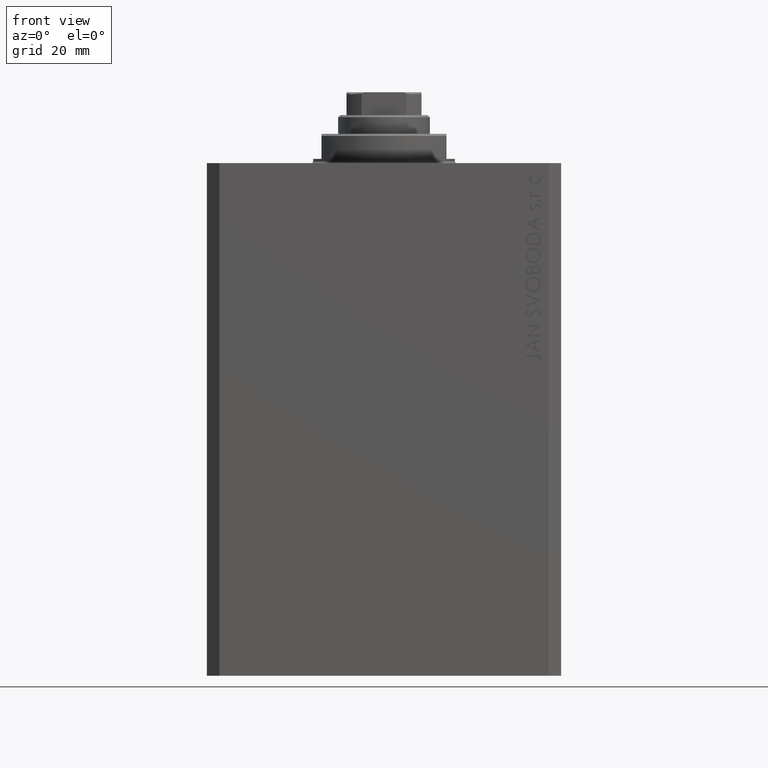
[diagram: clean part render]
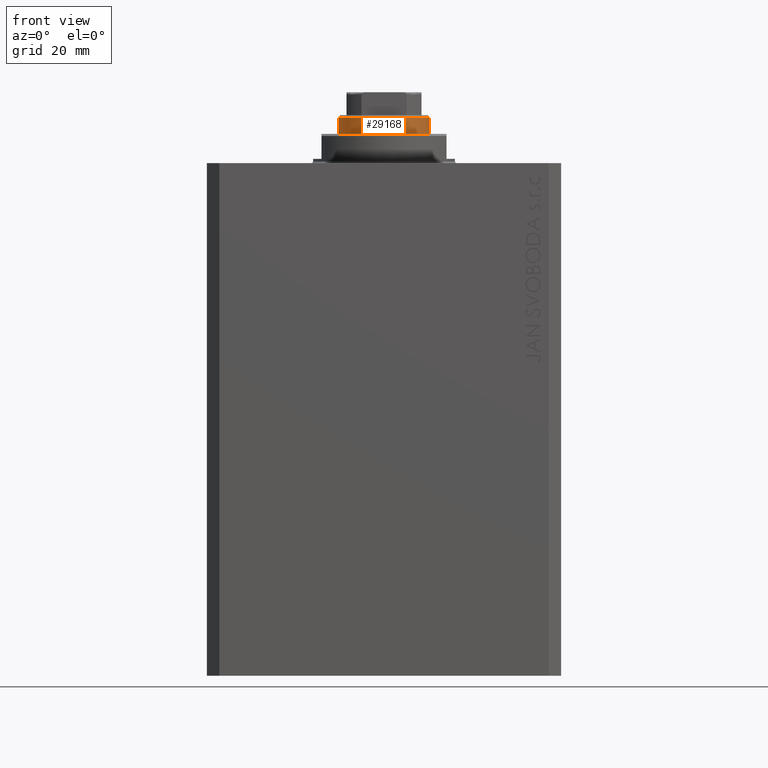
[diagram: same view with one face highlighted and labeled with its STEP entity id]
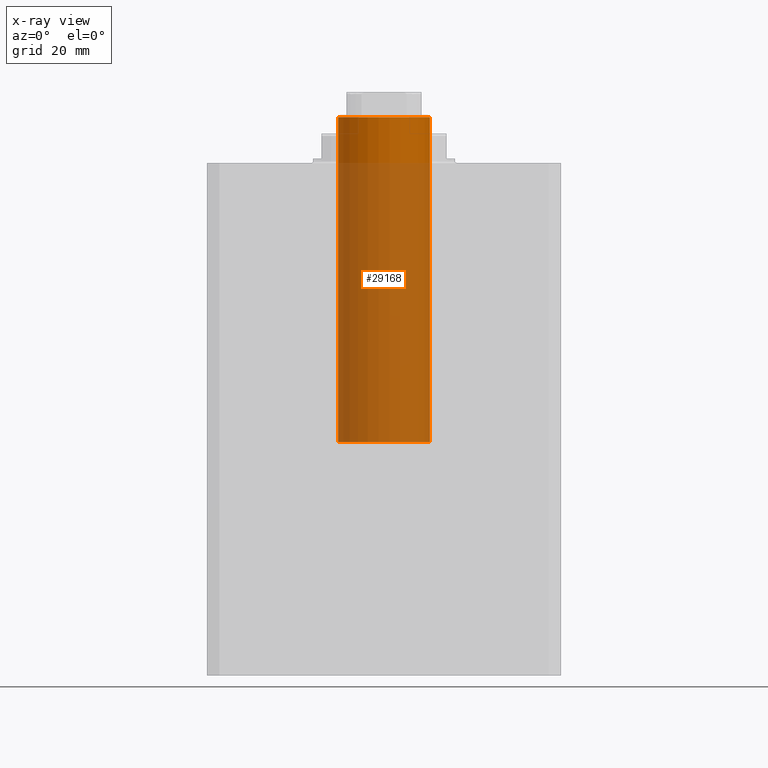
[diagram: x-ray of the same camera — body ghosted, the highlighted face saturated]
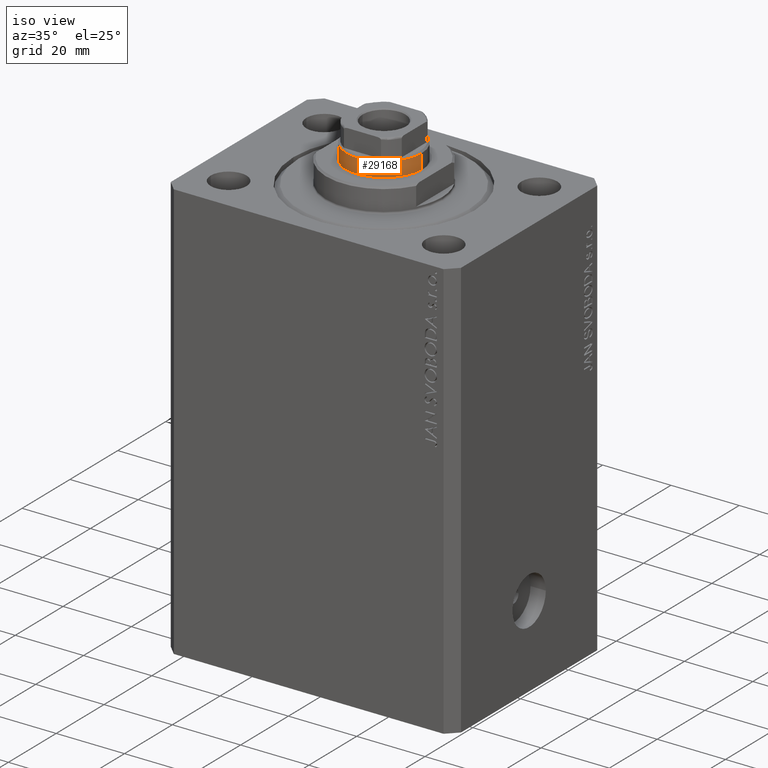
[diagram: same view with one face highlighted and labeled with its STEP entity id]
A machine part, front view. The second image highlights one B-rep face of the part: STEP entity #29168.
The next image is the same camera in x-ray: the body ghosted, the highlighted face saturated — about 86% of this face is hidden behind the body in this view.
A second angle (iso view) of the same face is appended — the face is thin or edge-on in the first view.
In plain terms, the highlighted cylindrical surface (partial cylindrical patch) has radius 11 mm, axis along (-0, -0, -1).
Its self-contained STEP definition (entity closure, byte-faithful):
#542 = EDGE_CURVE ( 'NONE', #40315, #27679, #14548, .T. ) ;
#618 = VECTOR ( 'NONE', #4387, 1000.000000000000000 ) ;
#1854 = EDGE_CURVE ( 'NONE', #26172, #43514, #12380, .T. ) ;
#4387 = DIRECTION ( 'NONE',  ( -0.000000000000000000, -0.000000000000000000, -1.000000000000000000 ) ) ;
#6882 = DIRECTION ( 'NONE',  ( -0.000000000000000000, -0.000000000000000000, -1.000000000000000000 ) ) ;
#8304 = DIRECTION ( 'NONE',  ( 0.000000000000000000, 0.000000000000000000, 1.000000000000000000 ) ) ;
#8514 = DIRECTION ( 'NONE',  ( 1.000000000000000000, 0.000000000000000000, 0.000000000000000000 ) ) ;
#8596 = DIRECTION ( 'NONE',  ( -0.000000000000000000, -0.000000000000000000, -1.000000000000000000 ) ) ;
#10491 = EDGE_CURVE ( 'NONE', #27679, #26172, #21949, .T. ) ;
#12194 = CARTESIAN_POINT ( 'NONE',  ( 11.00000000000000000, 1.347111479062088405E-15, 123.0999999999999943 ) ) ;
#12380 = CIRCLE ( 'NONE', #18848, 11.00000000000000000 ) ;
#13706 = CARTESIAN_POINT ( 'NONE',  ( -11.00000000000000000, 0.000000000000000000, 122.6000000000000085 ) ) ;
#13855 = CARTESIAN_POINT ( 'NONE',  ( 0.000000000000000000, 0.000000000000000000, 123.0999999999999943 ) ) ;
#14548 = CIRCLE ( 'NONE', #39036, 11.00000000000000000 ) ;
#15712 = CARTESIAN_POINT ( 'NONE',  ( 0.000000000000000000, 0.000000000000000000, 44.60000000000000142 ) ) ;
#15799 = LINE ( 'NONE', #12194, #40614 ) ;
#17744 = ORIENTED_EDGE ( 'NONE', *, *, #31344, .F. ) ;
#18848 = AXIS2_PLACEMENT_3D ( 'NONE', #15712, #8304, #8514 ) ;
#20619 = CYLINDRICAL_SURFACE ( 'NONE', #36263, 11.00000000000000000 ) ;
#20926 = DIRECTION ( 'NONE',  ( 0.000000000000000000, 0.000000000000000000, -1.000000000000000000 ) ) ;
#21006 = CARTESIAN_POINT ( 'NONE',  ( -11.00000000000000000, 0.000000000000000000, 44.60000000000000142 ) ) ;
#21341 = ORIENTED_EDGE ( 'NONE', *, *, #1854, .T. ) ;
#21609 = EDGE_LOOP ( 'NONE', ( #17744, #28599, #36876, #21341 ) ) ;
#21949 = LINE ( 'NONE', #29151, #618 ) ;
#21981 = CARTESIAN_POINT ( 'NONE',  ( 11.00000000000000000, 1.347111479062088405E-15, 44.60000000000000142 ) ) ;
#23865 = CARTESIAN_POINT ( 'NONE',  ( 0.000000000000000000, 0.000000000000000000, 122.6000000000000085 ) ) ;
#26172 = VERTEX_POINT ( 'NONE', #21006 ) ;
#27679 = VERTEX_POINT ( 'NONE', #13706 ) ;
#28599 = ORIENTED_EDGE ( 'NONE', *, *, #542, .T. ) ;
#29151 = CARTESIAN_POINT ( 'NONE',  ( -11.00000000000000000, 0.000000000000000000, 123.0999999999999943 ) ) ;
#29168 = ADVANCED_FACE ( 'NONE', ( #30313 ), #20619, .T. ) ;
#30313 = FACE_OUTER_BOUND ( 'NONE', #21609, .T. ) ;
#31344 = EDGE_CURVE ( 'NONE', #40315, #43514, #15799, .T. ) ;
#34598 = DIRECTION ( 'NONE',  ( -1.000000000000000000, 0.000000000000000000, 0.000000000000000000 ) ) ;
#36263 = AXIS2_PLACEMENT_3D ( 'NONE', #13855, #6882, #34598 ) ;
#36876 = ORIENTED_EDGE ( 'NONE', *, *, #10491, .T. ) ;
#39036 = AXIS2_PLACEMENT_3D ( 'NONE', #23865, #20926, #40998 ) ;
#40315 = VERTEX_POINT ( 'NONE', #41825 ) ;
#40614 = VECTOR ( 'NONE', #8596, 1000.000000000000000 ) ;
#40998 = DIRECTION ( 'NONE',  ( 1.000000000000000000, 0.000000000000000000, 0.000000000000000000 ) ) ;
#41825 = CARTESIAN_POINT ( 'NONE',  ( 11.00000000000000000, 1.347111479062088405E-15, 122.6000000000000085 ) ) ;
#43514 = VERTEX_POINT ( 'NONE', #21981 ) ;